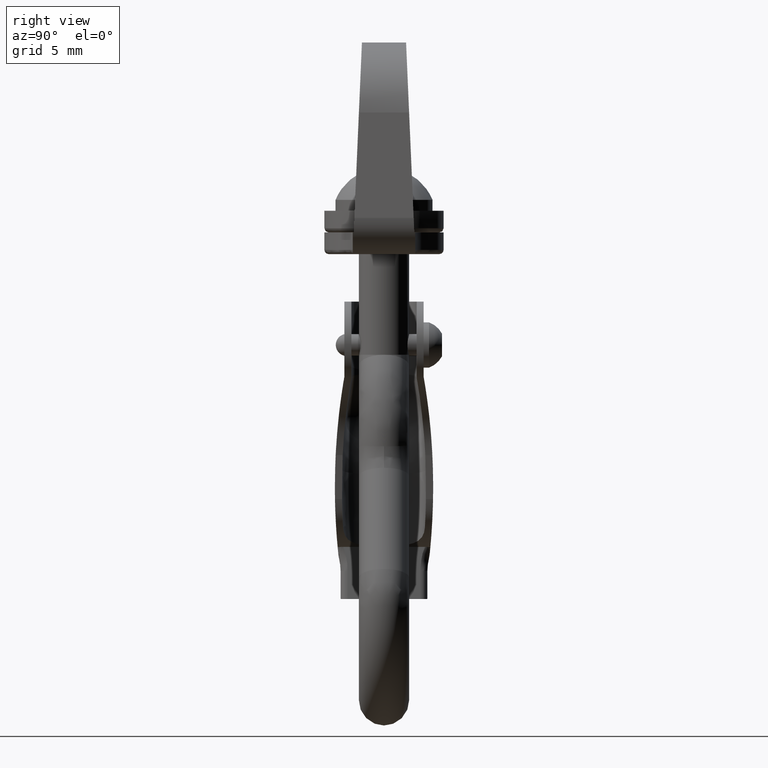
[diagram: clean part render]
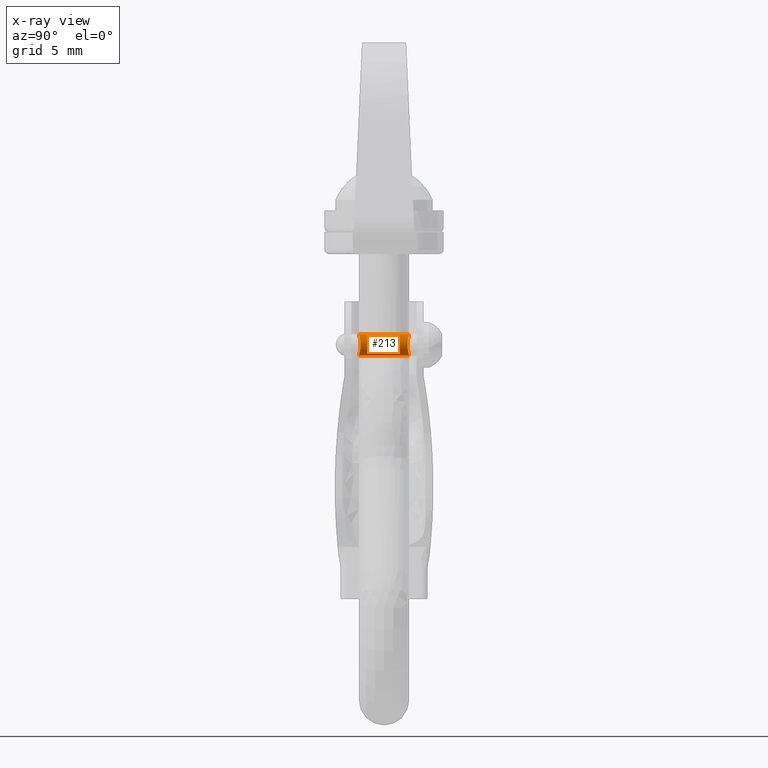
[diagram: x-ray — body ghosted, one internal face saturated and labeled with its STEP entity id]
A machine part, right view, then the same camera in x-ray: the body is ghosted and one INTERNAL B-rep face — a face not visible from any outside direction — is saturated and labeled: STEP entity #213.
In plain terms, the highlighted cylindrical surface (edge-blend (fillet) strip) has radius 0.7778 mm, axis along (0, 1, 0).
Its self-contained STEP definition (entity closure, byte-faithful):
#213=ADVANCED_FACE('',(#953),#952,.F.);
#952=CYLINDRICAL_SURFACE('',#2619,7.77777777778E-01);
#953=FACE_OUTER_BOUND('',#2620,.T.);
#2616=CARTESIAN_POINT('',(-6.39488462184E-14,1.00000000000E+01,0.00000000000E+00));
#2617=DIRECTION('',(-0.00000000000E+00,1.00000000000E+00,0.00000000000E+00));
#2618=DIRECTION('',(-0.00000000000E+00,-0.00000000000E+00,1.00000000000E+00));
#2619=AXIS2_PLACEMENT_3D('',#2616,#2617,#2618);
#2620=EDGE_LOOP('',(#4099,#4100,#4101,#4102,#4103,#4104,#4105,#4106,#4107,#4108));
#4099=ORIENTED_EDGE('',*,*,#4746,.T.);
#4100=ORIENTED_EDGE('',*,*,#4738,.T.);
#4101=ORIENTED_EDGE('',*,*,#4731,.T.);
#4102=ORIENTED_EDGE('',*,*,#4768,.T.);
#4103=ORIENTED_EDGE('',*,*,#4790,.T.);
#4104=ORIENTED_EDGE('',*,*,#4770,.F.);
#4105=ORIENTED_EDGE('',*,*,#4734,.T.);
#4106=ORIENTED_EDGE('',*,*,#4786,.T.);
#4107=ORIENTED_EDGE('',*,*,#4757,.F.);
#4108=ORIENTED_EDGE('',*,*,#4791,.F.);
#4731=EDGE_CURVE('',#5894,#5895,#5896,.T.);
#4734=EDGE_CURVE('',#5916,#5909,#5917,.T.);
#4738=EDGE_CURVE('',#5943,#5894,#5944,.T.);
#4746=EDGE_CURVE('',#5997,#5943,#5998,.T.);
#4757=EDGE_CURVE('',#6064,#6071,#6072,.T.);
#4768=EDGE_CURVE('',#5895,#6139,#6146,.T.);
#4770=EDGE_CURVE('',#5916,#6158,#6159,.T.);
#4786=EDGE_CURVE('',#5909,#6071,#6258,.T.);
#4790=EDGE_CURVE('',#6139,#6158,#6285,.T.);
#4791=EDGE_CURVE('',#5997,#6064,#6291,.T.);
#5894=VERTEX_POINT('',#8549);
#5895=VERTEX_POINT('',#8550);
#5896=(BOUNDED_CURVE() B_SPLINE_CURVE(3,(#8551,#8552,#8553,#8554,#8555,#8556,#8557,#8558,#8559,#8560),.UNSPECIFIED.,.F.,.F.) B_SPLINE_CURVE_WITH_KNOTS((4,2,2,2,4),(3.41179319552E-18,4.87788293096E-04,9.75576586192E-04,1.46336487929E-03,1.95115317238E-03),.UNSPECIFIED.) CURVE() GEOMETRIC_REPRESENTATION_ITEM() RATIONAL_B_SPLINE_CURVE((1.00000000000E+00,1.00000000000E+00,1.00000000000E+00,1.00000000000E+00,1.00000000000E+00,1.00000000000E+00,1.00000000000E+00,1.00000000000E+00,1.00000000000E+00,1.00000000000E+00)) REPRESENTATION_ITEM('') );
#5909=VERTEX_POINT('',#8566);
#5916=VERTEX_POINT('',#8571);
#5917=(BOUNDED_CURVE() B_SPLINE_CURVE(3,(#8572,#8573,#8574,#8575,#8576,#8577,#8578,#8579,#8580,#8581),.UNSPECIFIED.,.F.,.F.) B_SPLINE_CURVE_WITH_KNOTS((4,2,2,2,4),(0.00000000000E+00,4.87761079912E-04,9.75522159824E-04,1.46328323974E-03,1.95104431965E-03),.UNSPECIFIED.) CURVE() GEOMETRIC_REPRESENTATION_ITEM() RATIONAL_B_SPLINE_CURVE((1.00000000000E+00,1.00000000000E+00,1.00000000000E+00,1.00000000000E+00,1.00000000000E+00,1.00000000000E+00,1.00000000000E+00,1.00000000000E+00,1.00000000000E+00,1.00000000000E+00)) REPRESENTATION_ITEM('') );
#5943=VERTEX_POINT('',#8594);
#5944=(BOUNDED_CURVE() B_SPLINE_CURVE(3,(#8595,#8596,#8597,#8598),.UNSPECIFIED.,.F.,.F.) B_SPLINE_CURVE_WITH_KNOTS((4,4),(1.34950223851E-06,2.05386169172E-04),.UNSPECIFIED.) CURVE() GEOMETRIC_REPRESENTATION_ITEM() RATIONAL_B_SPLINE_CURVE((1.00000000000E+00,1.00000000000E+00,1.00000000000E+00,1.00000000000E+00)) REPRESENTATION_ITEM('') );
#5997=VERTEX_POINT('',#8659);
#5998=CIRCLE('',#8663,7.77777777778E-01);
#6064=VERTEX_POINT('',#8703);
#6071=VERTEX_POINT('',#8708);
#6072=CIRCLE('',#8712,7.77777777778E-01);
#6139=VERTEX_POINT('',#8753);
#6146=CIRCLE('',#8761,7.77777777778E-01);
#6158=VERTEX_POINT('',#8765);
#6159=CIRCLE('',#8769,7.77777777778E-01);
#6258=(BOUNDED_CURVE() B_SPLINE_CURVE(3,(#8829,#8830,#8831,#8832),.UNSPECIFIED.,.F.,.F.) B_SPLINE_CURVE_WITH_KNOTS((4,4),(4.56257600459E-07,2.04492924534E-04),.UNSPECIFIED.) CURVE() GEOMETRIC_REPRESENTATION_ITEM() RATIONAL_B_SPLINE_CURVE((1.00000000000E+00,1.00000000000E+00,1.00000000000E+00,1.00000000000E+00)) REPRESENTATION_ITEM('') );
#6285=(BOUNDED_CURVE() B_SPLINE_CURVE(1,(#8848,#8849),.UNSPECIFIED.,.F.,.F.) B_SPLINE_CURVE_WITH_KNOTS((2,2),(8.33333358172E-02,9.16666664408E-01),.UNSPECIFIED.) CURVE() GEOMETRIC_REPRESENTATION_ITEM() RATIONAL_B_SPLINE_CURVE((1.00000000000E+00,1.00000000000E+00)) REPRESENTATION_ITEM('') );
#6291=(BOUNDED_CURVE() B_SPLINE_CURVE(1,(#8850,#8851),.UNSPECIFIED.,.F.,.F.) B_SPLINE_CURVE_WITH_KNOTS((2,2),(8.33333333333E-02,9.16666666667E-01),.UNSPECIFIED.) CURVE() GEOMETRIC_REPRESENTATION_ITEM() RATIONAL_B_SPLINE_CURVE((7.50000000000E-01,7.50000000000E-01)) REPRESENTATION_ITEM('') );
#8549=CARTESIAN_POINT('',(3.39025473387E-01,-1.78945193374E+00,-7.00000000000E-01));
#8550=CARTESIAN_POINT('',(1.44444444444E-01,-1.80000000000E+00,7.64247390623E-01));
#8551=CARTESIAN_POINT('',(3.39025473387E-01,-1.78945193374E+00,-7.00000000000E-01));
#8552=CARTESIAN_POINT('',(4.86856984987E-01,-1.77337706350E+00,-6.28401931140E-01));
#8553=CARTESIAN_POINT('',(6.06577544048E-01,-1.74154513012E+00,-5.13066737720E-01));
#8554=CARTESIAN_POINT('',(7.60963193841E-01,-1.69305967810E+00,-2.28273546248E-01));
#8555=CARTESIAN_POINT('',(7.92387693816E-01,-1.67948939112E+00,-5.98550572881E-02));
#8556=CARTESIAN_POINT('',(7.49837066172E-01,-1.69529196390E+00,2.63068925169E-01));
#8557=CARTESIAN_POINT('',(6.76103317879E-01,-1.72343565576E+00,4.16768588945E-01));
#8558=CARTESIAN_POINT('',(4.55327540953E-01,-1.77658191975E+00,6.50760004631E-01));
#8559=CARTESIAN_POINT('',(3.06686331621E-01,-1.80000000000E+00,7.33583315683E-01));
#8560=CARTESIAN_POINT('',(1.44444444444E-01,-1.80000000000E+00,7.64247390623E-01));
#8566=CARTESIAN_POINT('',(3.39025473387E-01,1.78945193374E+00,-7.00000000000E-01));
#8571=CARTESIAN_POINT('',(1.44444444444E-01,1.80000000000E+00,7.64247390623E-01));
#8572=CARTESIAN_POINT('',(1.44444444444E-01,1.80000000000E+00,7.64247390623E-01));
#8573=CARTESIAN_POINT('',(3.06651178625E-01,1.80000000000E+00,7.33589959677E-01));
#8574=CARTESIAN_POINT('',(4.53506832576E-01,1.77697060761E+00,6.52363969621E-01));
#8575=CARTESIAN_POINT('',(6.76456556685E-01,1.72339989918E+00,4.16717797762E-01));
#8576=CARTESIAN_POINT('',(7.49159108544E-01,1.69553998180E+00,2.65084277088E-01));
#8577=CARTESIAN_POINT('',(7.92554149300E-01,1.67943129223E+00,-5.80255486901E-02));
#8578=CARTESIAN_POINT('',(7.61183763723E-01,1.69295535945E+00,-2.27212587373E-01));
#8579=CARTESIAN_POINT('',(6.07778593850E-01,1.74120265995E+00,-5.11499230570E-01));
#8580=CARTESIAN_POINT('',(4.86804514808E-01,1.77338276899E+00,-6.28427343608E-01));
#8581=CARTESIAN_POINT('',(3.39025473387E-01,1.78945193374E+00,-7.00000000000E-01));
#8594=CARTESIAN_POINT('',(1.45583692015E-01,-1.80000000000E+00,-7.64031190609E-01));
#8595=CARTESIAN_POINT('',(1.45583692015E-01,-1.80000000000E+00,-7.64031190609E-01));
#8596=CARTESIAN_POINT('',(2.13058755210E-01,-1.80000000000E+00,-7.51174033808E-01));
#8597=CARTESIAN_POINT('',(2.77508724341E-01,-1.79614112841E+00,-7.29793921381E-01));
#8598=CARTESIAN_POINT('',(3.39025473387E-01,-1.78945193374E+00,-7.00000000000E-01));
#8659=CARTESIAN_POINT('',(-5.11837413161E-06,-1.80000000000E+00,-7.77777777761E-01));
#8660=CARTESIAN_POINT('',(-6.39488462184E-14,-1.80000000000E+00,0.00000000000E+00));
#8661=DIRECTION('',(0.00000000000E+00,-1.00000000000E+00,-0.00000000000E+00));
#8662=DIRECTION('',(1.87179032591E-01,0.00000000000E+00,-9.82325816498E-01));
#8663=AXIS2_PLACEMENT_3D('',#8660,#8661,#8662);
#8703=CARTESIAN_POINT('',(-5.13533538018E-06,1.80000000000E+00,-7.77777777761E-01));
#8708=CARTESIAN_POINT('',(1.45583692015E-01,1.80000000000E+00,-7.64031190609E-01));
#8709=CARTESIAN_POINT('',(-6.39488462184E-14,1.80000000000E+00,0.00000000000E+00));
#8710=DIRECTION('',(0.00000000000E+00,-1.00000000000E+00,-0.00000000000E+00));
#8711=DIRECTION('',(1.87179032591E-01,0.00000000000E+00,-9.82325816498E-01));
#8712=AXIS2_PLACEMENT_3D('',#8709,#8710,#8711);
#8753=CARTESIAN_POINT('',(-9.21800859821E-14,-1.80000000000E+00,7.77777777778E-01));
#8758=CARTESIAN_POINT('',(-6.39488462184E-14,-1.80000000000E+00,0.00000000000E+00));
#8759=DIRECTION('',(0.00000000000E+00,-1.00000000000E+00,0.00000000000E+00));
#8760=DIRECTION('',(-0.00000000000E+00,-0.00000000000E+00,-1.00000000000E+00));
#8761=AXIS2_PLACEMENT_3D('',#8758,#8759,#8760);
#8765=CARTESIAN_POINT('',(-9.28590645181E-14,1.80000000000E+00,7.77777777778E-01));
#8766=CARTESIAN_POINT('',(-6.39488462184E-14,1.80000000000E+00,0.00000000000E+00));
#8767=DIRECTION('',(0.00000000000E+00,-1.00000000000E+00,0.00000000000E+00));
#8768=DIRECTION('',(-0.00000000000E+00,-0.00000000000E+00,-1.00000000000E+00));
#8769=AXIS2_PLACEMENT_3D('',#8766,#8767,#8768);
#8829=CARTESIAN_POINT('',(3.39025473387E-01,1.78945193374E+00,-7.00000000000E-01));
#8830=CARTESIAN_POINT('',(2.77508724341E-01,1.79614112841E+00,-7.29793921381E-01));
#8831=CARTESIAN_POINT('',(2.13058755210E-01,1.80000000000E+00,-7.51174033808E-01));
#8832=CARTESIAN_POINT('',(1.45583692015E-01,1.80000000000E+00,-7.64031190609E-01));
#8848=CARTESIAN_POINT('',(-6.39488462184E-14,-1.79999998927E+00,7.77777777778E-01));
#8849=CARTESIAN_POINT('',(-6.39488462184E-14,1.79999999024E+00,7.77777777778E-01));
#8850=CARTESIAN_POINT('',(-6.39858536526E-14,-1.80000000000E+00,-7.77777777778E-01));
#8851=CARTESIAN_POINT('',(-6.39858536526E-14,1.80000000000E+00,-7.77777777778E-01));